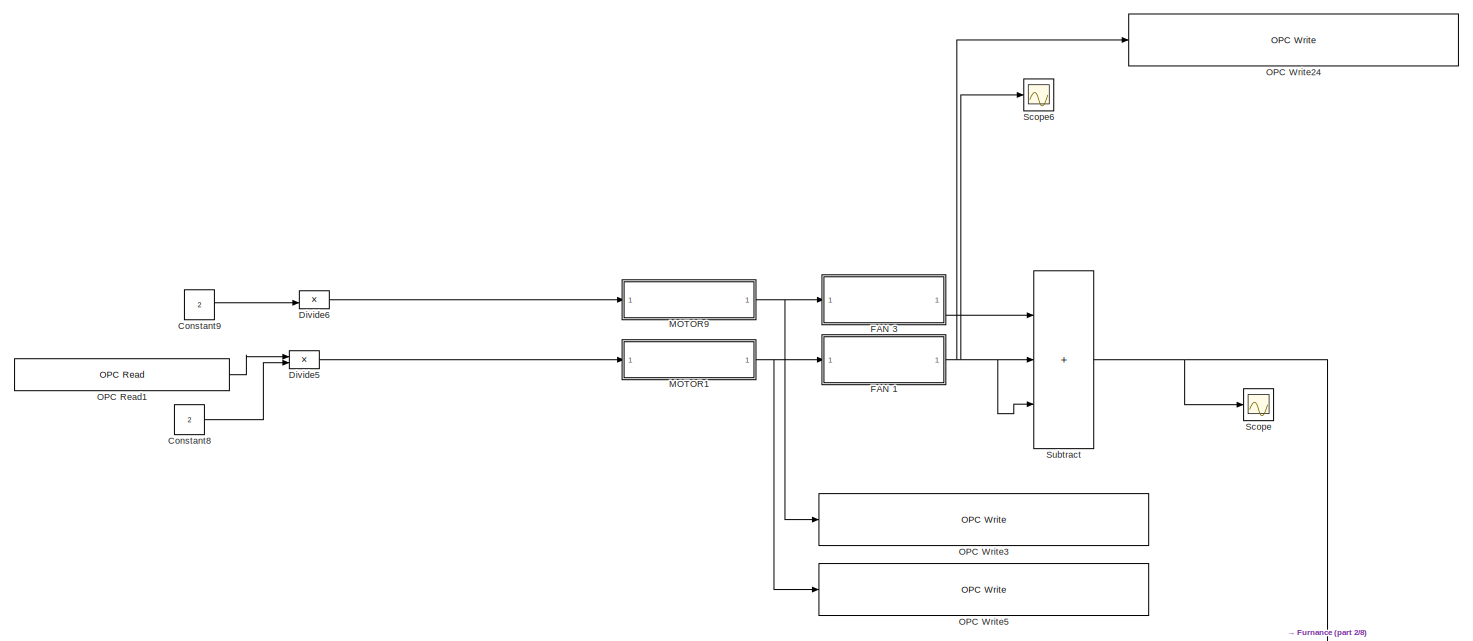
[diagram: root canvas - part 1/8, top left region]
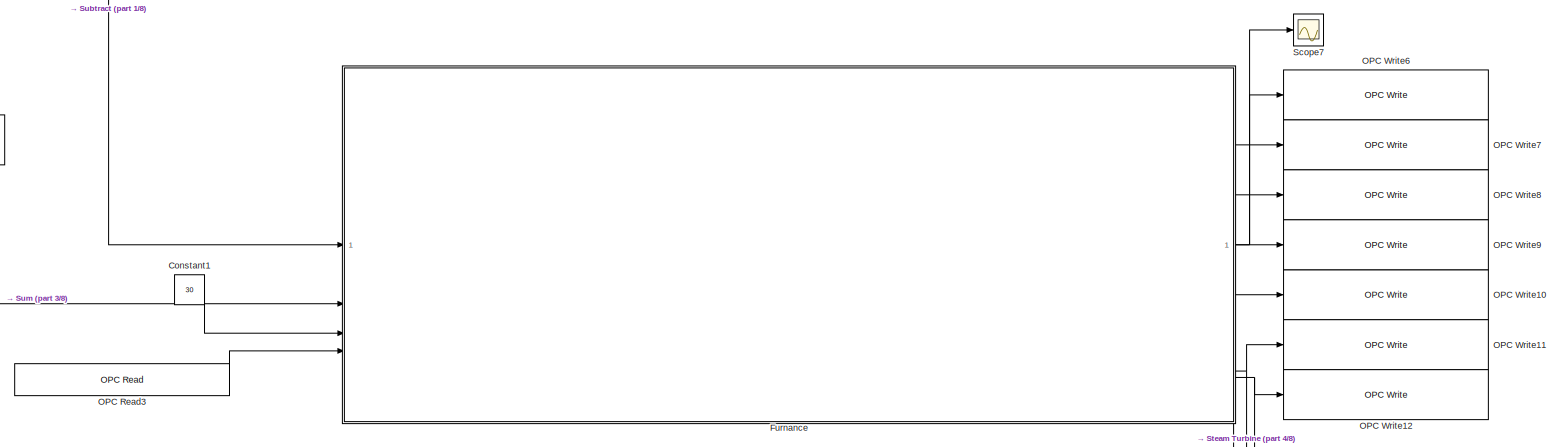
[diagram: root canvas - part 2/8, top right region]
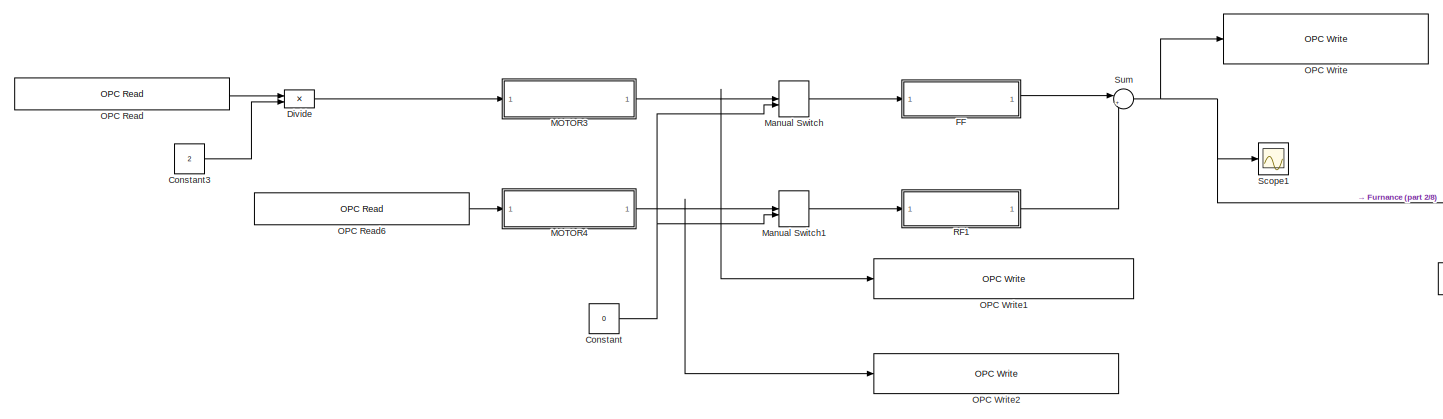
[diagram: root canvas - part 3/8, middle left region]
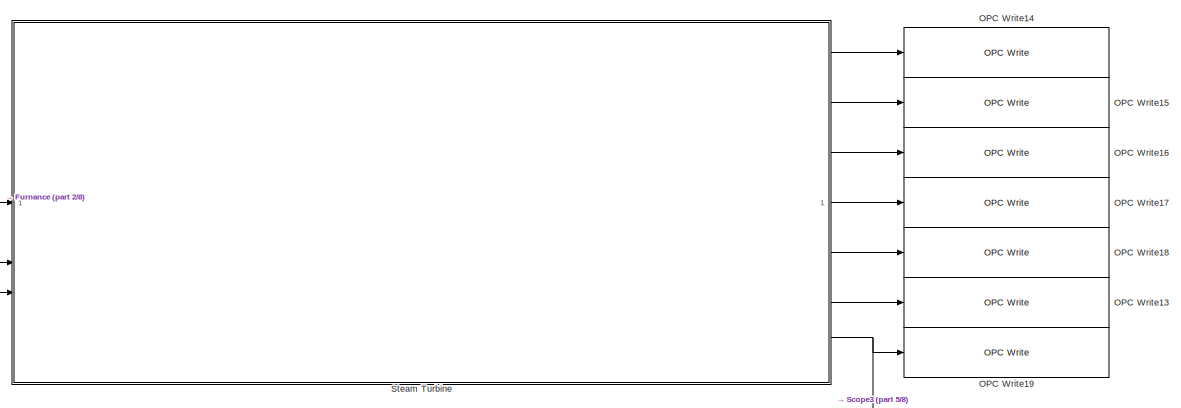
[diagram: root canvas - part 4/8, middle right region]
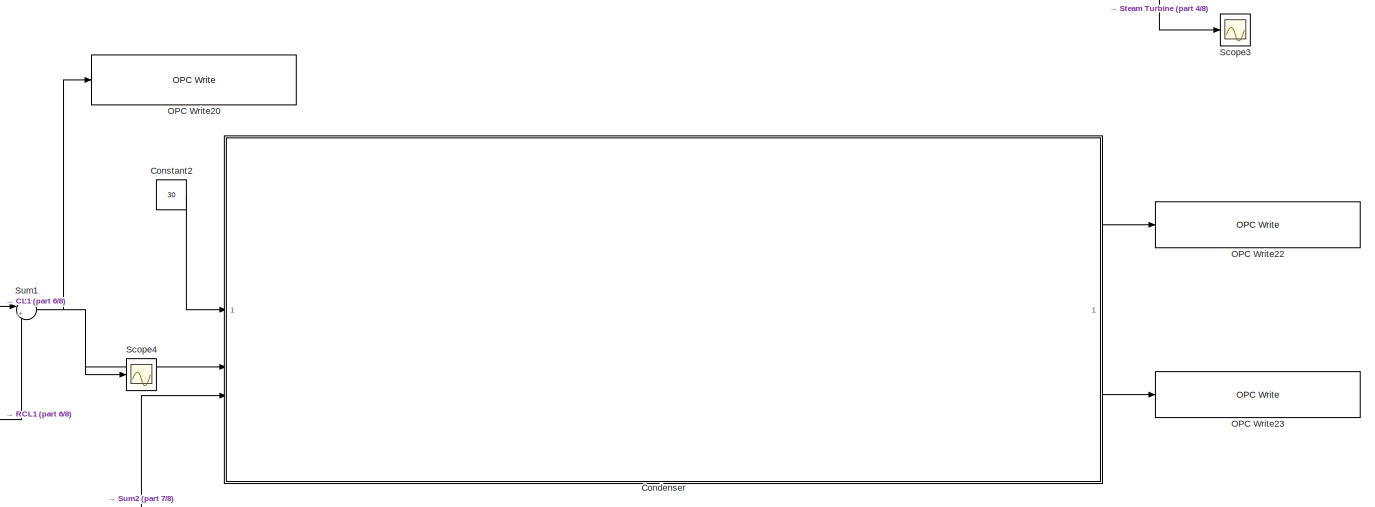
[diagram: root canvas - part 5/8, bottom right region]
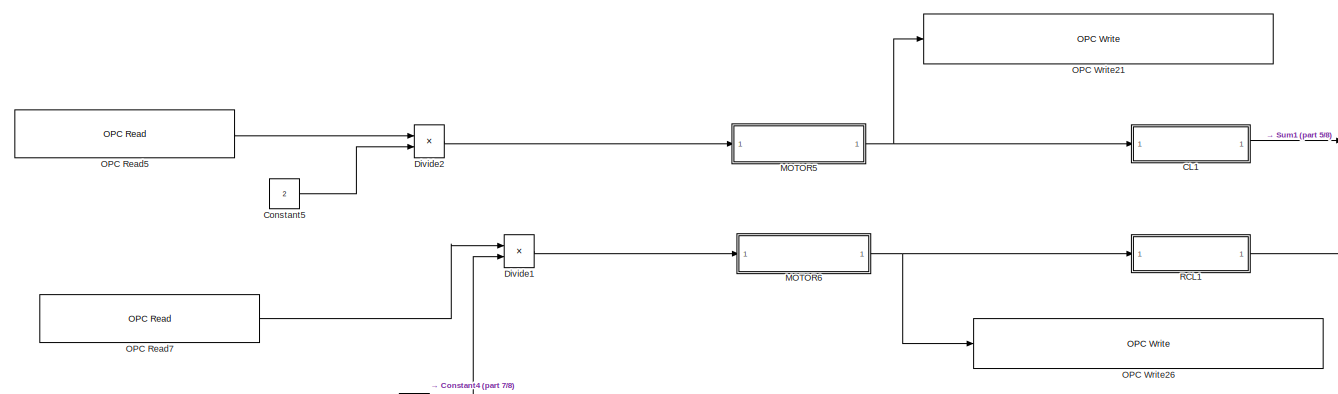
[diagram: root canvas - part 6/8, bottom left region]
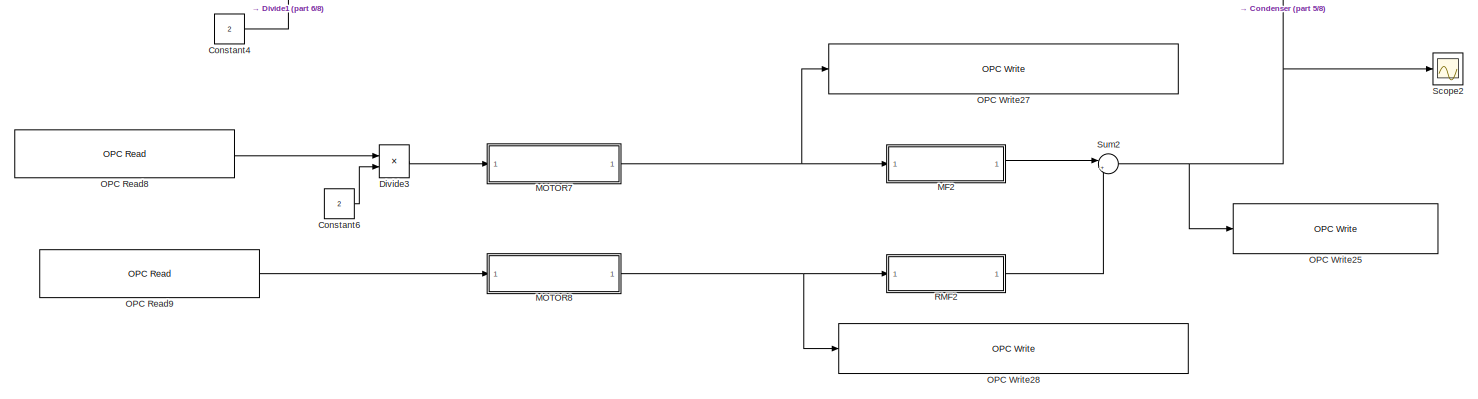
[diagram: root canvas - part 7/8, bottom center region]
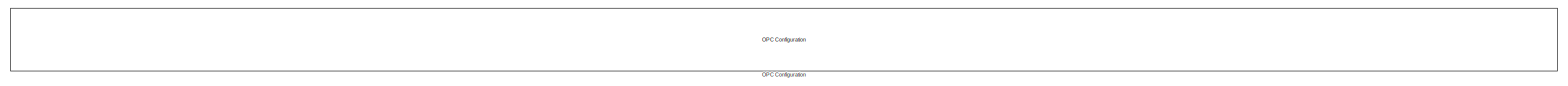
[diagram: root canvas - part 8/8, full width, bottom band]
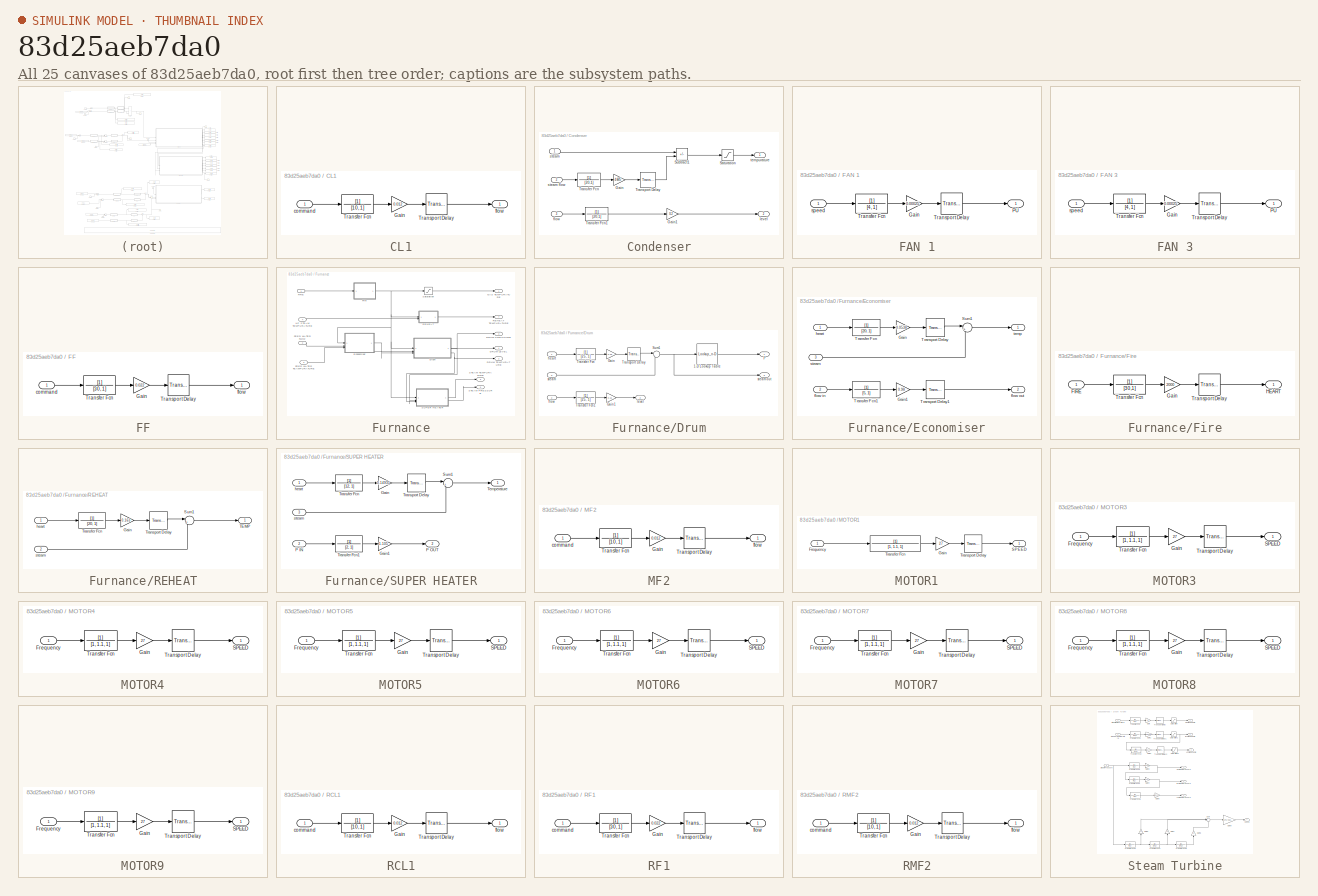
[diagram: thumbnail index - all 25 canvases of the model, root first then tree order]
MODEL slx_83d25aeb7da0
KIND model
CONFIG AbsTol = auto
CONFIG EnableMultiTasking = off
CONFIG FixedStep = auto
CONFIG MaxStep = auto
CONFIG MinStep = auto
CONFIG RelTol = 1e-3
CONFIG SampleTimeConstraint = Unconstrained
CONFIG SolverName = VariableStepAuto
CONFIG StartTime = 0.0
CONFIG StopTime = inf
BLOCK [SubSystem] CL1
BLOCK [Gain] CL1/Gain
  Gain = 0.012
BLOCK [TransferFcn] CL1/Transfer Fcn
  Denominator = [10, 1]
BLOCK [TransportDelay] CL1/Transport Delay
  DelayTime = 2
BLOCK [Inport] CL1/command
BLOCK [Outport] CL1/flow
BLOCK [SubSystem] Condenser
BLOCK [Gain] Condenser/Gain
  Gain = 4.6875
BLOCK [Gain] Condenser/Gain1
  Gain = 0.2
BLOCK [Saturate] Condenser/Saturation
  LowerLimit = 25
  UpperLimit = 35
BLOCK [Sum] Condenser/Subtract1
  IconShape = rectangular
  Inputs = +-
BLOCK [TransferFcn] Condenser/Transfer Fcn
  Denominator = [20,1]
BLOCK [TransferFcn] Condenser/Transfer Fcn1
  Denominator = [20,1]
BLOCK [TransportDelay] Condenser/Transport Delay
  DelayTime = 4
BLOCK [Inport] Condenser/flow
  Port = 3
BLOCK [Outport] Condenser/level
  Port = 2
BLOCK [Inport] Condenser/steam
BLOCK [Inport] Condenser/steam flow
  Port = 2
BLOCK [Outport] Condenser/tempurature
BLOCK [Constant] Constant
  Value = 0
BLOCK [Constant] Constant1
  Value = 30
BLOCK [Constant] Constant2
  Value = 30
BLOCK [Constant] Constant3
  Value = 2
BLOCK [Constant] Constant4
  Value = 2
BLOCK [Constant] Constant5
  Value = 2
BLOCK [Constant] Constant6
  Value = 2
BLOCK [Constant] Constant8
  Value = 2
BLOCK [Constant] Constant9
  Value = 2
BLOCK [Product] Divide
  Inputs = */
  RndMeth = Zero
  SaturateOnIntegerOverflow = on
BLOCK [Product] Divide1
  Inputs = */
  RndMeth = Zero
  SaturateOnIntegerOverflow = on
BLOCK [Product] Divide2
  Inputs = */
  RndMeth = Zero
  SaturateOnIntegerOverflow = on
BLOCK [Product] Divide3
  Inputs = */
  RndMeth = Zero
  SaturateOnIntegerOverflow = on
BLOCK [Product] Divide5
  Inputs = */
  RndMeth = Zero
  SaturateOnIntegerOverflow = on
BLOCK [Product] Divide6
  Inputs = */
  RndMeth = Zero
  SaturateOnIntegerOverflow = on
BLOCK [SubSystem] FAN 1
BLOCK [Gain] FAN 1/Gain
  Gain = 0.00025
BLOCK [Outport] FAN 1/PU
BLOCK [TransferFcn] FAN 1/Transfer Fcn
  Denominator = [4, 1]
BLOCK [TransportDelay] FAN 1/Transport Delay
  DelayTime = 2
BLOCK [Inport] FAN 1/speed
BLOCK [SubSystem] FAN 3
BLOCK [Gain] FAN 3/Gain
  Gain = 0.00025
BLOCK [Outport] FAN 3/PU
BLOCK [TransferFcn] FAN 3/Transfer Fcn
  Denominator = [4, 1]
BLOCK [TransportDelay] FAN 3/Transport Delay
  DelayTime = 2
BLOCK [Inport] FAN 3/speed
BLOCK [SubSystem] FF
BLOCK [Gain] FF/Gain
  Gain = 0.022
BLOCK [TransferFcn] FF/Transfer Fcn
  Denominator = [30, 1]
BLOCK [TransportDelay] FF/Transport Delay
  DelayTime = 3
BLOCK [Inport] FF/command
BLOCK [Outport] FF/flow
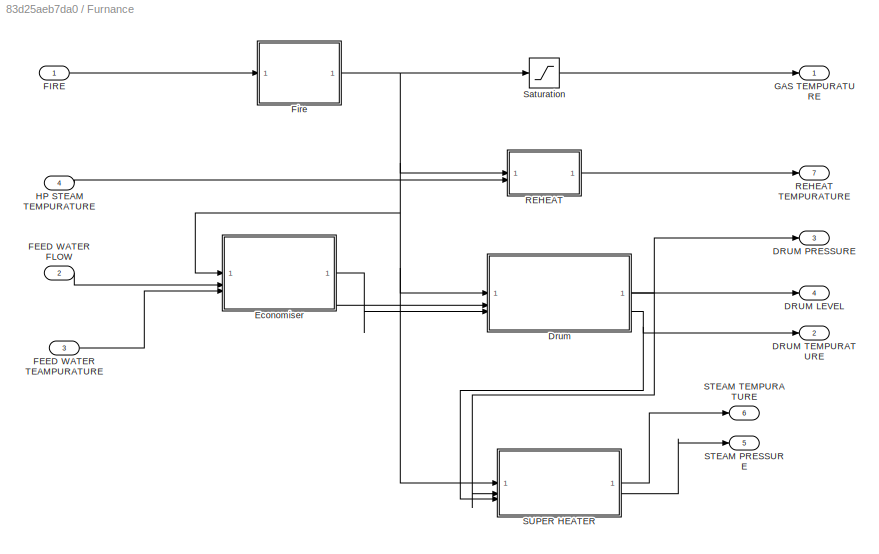
BLOCK [SubSystem] Furnance
BLOCK [Outport] Furnance/DRUM LEVEL
  Port = 4
BLOCK [Outport] Furnance/DRUM PRESSURE
  Port = 3
BLOCK [Outport] Furnance/DRUM TEMPURATURE
  Port = 2
BLOCK [SubSystem] Furnance/Drum
BLOCK [Lookup_n-D] Furnance/Drum/1-D Lookup Table
  BreakpointsForDimension1 = [28.98;32.9;36.18;39.02;41.53;43.79;45.83;47.71;49.45;51.06;52.58;54;55.34;56.62;57.83;58.98;60.09;61.15;62.16;63.14;64.08;64.99;65.87;66.72;67.55;68.35;69.12;75.89;81.35;85.95;89.96;93.51;96.71;99.63;104.81;109.32;113.32;116.63;120.23;127.43;133.54;138.88;143.62;147.92;151.85;164.96;170.42;175.36;179.88;187.96;191.6;195.04;198.28;201.37;204.3;207.1;209.79;212.37;214.85;217.24;219.54;221.78;223.94...<+280ch>
  InputPortMap = u0
  InternalRulePriority = Speed
  NumberOfTableDimensions = 1
  RndMeth = Simplest
  Table = [0.004;0.005;0.006;0.007;0.008;0.009;0.01;0.011;0.012;0.013;0.014;0.015;0.016;0.017;0.018;0.019;0.02;0.021;0.022;0.023;0.024;0.025;0.026;0.027;0.028;0.029;0.03;0.04;0.05;0.06;0.07;0.08;0.09;0.1;0.12;0.14;0.16;0.18;0.2;0.25;0.3;0.35;0.4;0.5;0.6;0.7;0.8;0.9;1;1.2;1.3;1.4;1.5;1.6;1.7;1.8;1.9;2;2.1;2.2;2.3;2.4;2.5;2.6;2.7;2.8;2.9;3;3.1;3.2;3.3;3.4;3.5;3.6;3.7;3.8;3.9;4;4.5;5;5.5;6;6.5;7;7.5;8;8.5;9;9....<+60ch>
BLOCK [Gain] Furnance/Drum/Gain
  Gain = 0.19
BLOCK [Gain] Furnance/Drum/Gain1
  Gain = 0.11
BLOCK [Outport] Furnance/Drum/P
BLOCK [Sum] Furnance/Drum/Sum1
  Inputs = |++
BLOCK [TransferFcn] Furnance/Drum/Transfer Fcn
  Denominator = [25, 1]
BLOCK [TransferFcn] Furnance/Drum/Transfer Fcn1
  Denominator = [25, 1]
BLOCK [TransportDelay] Furnance/Drum/Transport Delay
  DelayTime = 3
BLOCK [Inport] Furnance/Drum/flow 
  Port = 2
BLOCK [Inport] Furnance/Drum/heart
BLOCK [Outport] Furnance/Drum/level
  Port = 2
BLOCK [Inport] Furnance/Drum/steam
  Port = 3
BLOCK [Outport] Furnance/Drum/steam out
  Port = 3
BLOCK [SubSystem] Furnance/Economiser
BLOCK [Gain] Furnance/Economiser/Gain
  Gain = 0.0538
BLOCK [Gain] Furnance/Economiser/Gain1
  Gain = 0.98
BLOCK [Sum] Furnance/Economiser/Sum1
  Inputs = |++
BLOCK [TransferFcn] Furnance/Economiser/Transfer Fcn
  Denominator = [20, 1]
BLOCK [TransferFcn] Furnance/Economiser/Transfer Fcn1
  Denominator = [5, 1]
BLOCK [TransportDelay] Furnance/Economiser/Transport Delay
  DelayTime = 3
BLOCK [TransportDelay] Furnance/Economiser/Transport Delay1
  DelayTime = 2
BLOCK [Inport] Furnance/Economiser/flow in
  Port = 2
BLOCK [Outport] Furnance/Economiser/flow out
  Port = 2
BLOCK [Inport] Furnance/Economiser/heart
BLOCK [Inport] Furnance/Economiser/steam
  Port = 3
BLOCK [Outport] Furnance/Economiser/temp
BLOCK [Inport] Furnance/FEED WATER FLOW
  Port = 2
BLOCK [Inport] Furnance/FEED WATER TEAMPURATURE
  Port = 3
BLOCK [Inport] Furnance/FIRE
BLOCK [SubSystem] Furnance/Fire
BLOCK [Inport] Furnance/Fire/FIRE
BLOCK [Gain] Furnance/Fire/Gain
  Gain = 2000
BLOCK [Outport] Furnance/Fire/HEART
BLOCK [TransferFcn] Furnance/Fire/Transfer Fcn
  Denominator = [30,1]
BLOCK [TransportDelay] Furnance/Fire/Transport Delay
  DelayTime = 3
BLOCK [Outport] Furnance/GAS TEMPURATURE
BLOCK [Inport] Furnance/HP STEAM TEMPURATURE
  Port = 4
BLOCK [SubSystem] Furnance/REHEAT
BLOCK [Outport] Furnance/REHEAT TEMPURATURE
  Port = 7
BLOCK [Gain] Furnance/REHEAT/Gain
  Gain = 0.163
BLOCK [Sum] Furnance/REHEAT/Sum1
  Inputs = |++
BLOCK [Outport] Furnance/REHEAT/TEMP
BLOCK [TransferFcn] Furnance/REHEAT/Transfer Fcn
  Denominator = [20, 1]
BLOCK [TransportDelay] Furnance/REHEAT/Transport Delay
  DelayTime = 10
BLOCK [Inport] Furnance/REHEAT/heart
BLOCK [Inport] Furnance/REHEAT/steam
  Port = 2
BLOCK [Outport] Furnance/STEAM PRESSURE
  Port = 5
BLOCK [Outport] Furnance/STEAM TEMPURATURE
  Port = 6
BLOCK [SubSystem] Furnance/SUPER HEATER
BLOCK [Gain] Furnance/SUPER HEATER/Gain
  Gain = 0.14935
BLOCK [Gain] Furnance/SUPER HEATER/Gain1
  Gain = 1.105
BLOCK [Inport] Furnance/SUPER HEATER/P IN 
  Port = 2
BLOCK [Outport] Furnance/SUPER HEATER/P OUT
  Port = 2
BLOCK [Sum] Furnance/SUPER HEATER/Sum1
  Inputs = |++
BLOCK [Outport] Furnance/SUPER HEATER/Temperature
BLOCK [TransferFcn] Furnance/SUPER HEATER/Transfer Fcn
  Denominator = [12, 1]
BLOCK [TransferFcn] Furnance/SUPER HEATER/Transfer Fcn1
  Denominator = [2, 1]
BLOCK [TransportDelay] Furnance/SUPER HEATER/Transport Delay
BLOCK [Inport] Furnance/SUPER HEATER/heart
BLOCK [Inport] Furnance/SUPER HEATER/steam
  Port = 3
BLOCK [Saturate] Furnance/Saturation
  LowerLimit = 0
  UpperLimit = 2000
BLOCK [SubSystem] MF2
BLOCK [Gain] MF2/Gain
  Gain = 0.012
BLOCK [TransferFcn] MF2/Transfer Fcn
  Denominator = [10, 1]
BLOCK [TransportDelay] MF2/Transport Delay
  DelayTime = 2
BLOCK [Inport] MF2/command
BLOCK [Outport] MF2/flow
BLOCK [SubSystem] MOTOR1
BLOCK [Inport] MOTOR1/Frequency
BLOCK [Gain] MOTOR1/Gain
  Gain = 27
BLOCK [Outport] MOTOR1/SPEED
BLOCK [TransferFcn] MOTOR1/Transfer Fcn
  Denominator = [1, 1.1, 1]
BLOCK [TransportDelay] MOTOR1/Transport Delay
  DelayTime = 2
BLOCK [SubSystem] MOTOR3
BLOCK [Inport] MOTOR3/Frequency
BLOCK [Gain] MOTOR3/Gain
  Gain = 27
BLOCK [Outport] MOTOR3/SPEED
BLOCK [TransferFcn] MOTOR3/Transfer Fcn
  Denominator = [1, 1.1, 1]
BLOCK [TransportDelay] MOTOR3/Transport Delay
  DelayTime = 2
BLOCK [SubSystem] MOTOR4
BLOCK [Inport] MOTOR4/Frequency
BLOCK [Gain] MOTOR4/Gain
  Gain = 27
BLOCK [Outport] MOTOR4/SPEED
BLOCK [TransferFcn] MOTOR4/Transfer Fcn
  Denominator = [1, 1.1, 1]
BLOCK [TransportDelay] MOTOR4/Transport Delay
  DelayTime = 2
BLOCK [SubSystem] MOTOR5
BLOCK [Inport] MOTOR5/Frequency
BLOCK [Gain] MOTOR5/Gain
  Gain = 27
BLOCK [Outport] MOTOR5/SPEED
BLOCK [TransferFcn] MOTOR5/Transfer Fcn
  Denominator = [1, 1.1, 1]
BLOCK [TransportDelay] MOTOR5/Transport Delay
  DelayTime = 2
BLOCK [SubSystem] MOTOR6
BLOCK [Inport] MOTOR6/Frequency
BLOCK [Gain] MOTOR6/Gain
  Gain = 27
BLOCK [Outport] MOTOR6/SPEED
BLOCK [TransferFcn] MOTOR6/Transfer Fcn
  Denominator = [1, 1.1, 1]
BLOCK [TransportDelay] MOTOR6/Transport Delay
  DelayTime = 2
BLOCK [SubSystem] MOTOR7
BLOCK [Inport] MOTOR7/Frequency
BLOCK [Gain] MOTOR7/Gain
  Gain = 27
BLOCK [Outport] MOTOR7/SPEED
BLOCK [TransferFcn] MOTOR7/Transfer Fcn
  Denominator = [1, 1.1, 1]
BLOCK [TransportDelay] MOTOR7/Transport Delay
  DelayTime = 2
BLOCK [SubSystem] MOTOR8
BLOCK [Inport] MOTOR8/Frequency
BLOCK [Gain] MOTOR8/Gain
  Gain = 27
BLOCK [Outport] MOTOR8/SPEED
BLOCK [TransferFcn] MOTOR8/Transfer Fcn
  Denominator = [1, 1.1, 1]
BLOCK [TransportDelay] MOTOR8/Transport Delay
  DelayTime = 2
BLOCK [SubSystem] MOTOR9
BLOCK [Inport] MOTOR9/Frequency
BLOCK [Gain] MOTOR9/Gain
  Gain = 27
BLOCK [Outport] MOTOR9/SPEED
BLOCK [TransferFcn] MOTOR9/Transfer Fcn
  Denominator = [1, 1.1, 1]
BLOCK [TransportDelay] MOTOR9/Transport Delay
  DelayTime = 2
BLOCK [ManualSwitch] Manual Switch
BLOCK [ManualSwitch] Manual Switch1
BLOCK [Reference] OPC Configuration  REF=opclib/OPC Configuration
  NameLocation = top
  SourceBlock = opclib/OPC Configuration
  SourceType = OPC Configuration
BLOCK [Reference] OPC Read  REF=opclib/OPC Read
  SourceBlock = opclib/OPC Read
  SourceType = OPC Read
BLOCK [Reference] OPC Read1  REF=opclib/OPC Read
  SourceBlock = opclib/OPC Read
  SourceType = OPC Read
BLOCK [Reference] OPC Read3  REF=opclib/OPC Read
  SourceBlock = opclib/OPC Read
  SourceType = OPC Read
BLOCK [Reference] OPC Read5  REF=opclib/OPC Read
  SourceBlock = opclib/OPC Read
  SourceType = OPC Read
BLOCK [Reference] OPC Read6  REF=opclib/OPC Read
  SourceBlock = opclib/OPC Read
  SourceType = OPC Read
BLOCK [Reference] OPC Read7  REF=opclib/OPC Read
  SourceBlock = opclib/OPC Read
  SourceType = OPC Read
BLOCK [Reference] OPC Read8  REF=opclib/OPC Read
  SourceBlock = opclib/OPC Read
  SourceType = OPC Read
BLOCK [Reference] OPC Read9  REF=opclib/OPC Read
  SourceBlock = opclib/OPC Read
  SourceType = OPC Read
BLOCK [Reference] OPC Write  REF=opclib/OPC Write
  SourceBlock = opclib/OPC Write
  SourceType = OPC Write
BLOCK [Reference] OPC Write1  REF=opclib/OPC Write
  SourceBlock = opclib/OPC Write
  SourceType = OPC Write
BLOCK [Reference] OPC Write10  REF=opclib/OPC Write
  SourceBlock = opclib/OPC Write
  SourceType = OPC Write
BLOCK [Reference] OPC Write11  REF=opclib/OPC Write
  SourceBlock = opclib/OPC Write
  SourceType = OPC Write
BLOCK [Reference] OPC Write12  REF=opclib/OPC Write
  SourceBlock = opclib/OPC Write
  SourceType = OPC Write
BLOCK [Reference] OPC Write13  REF=opclib/OPC Write
  SourceBlock = opclib/OPC Write
  SourceType = OPC Write
BLOCK [Reference] OPC Write14  REF=opclib/OPC Write
  SourceBlock = opclib/OPC Write
  SourceType = OPC Write
BLOCK [Reference] OPC Write15  REF=opclib/OPC Write
  SourceBlock = opclib/OPC Write
  SourceType = OPC Write
BLOCK [Reference] OPC Write16  REF=opclib/OPC Write
  SourceBlock = opclib/OPC Write
  SourceType = OPC Write
BLOCK [Reference] OPC Write17  REF=opclib/OPC Write
  SourceBlock = opclib/OPC Write
  SourceType = OPC Write
BLOCK [Reference] OPC Write18  REF=opclib/OPC Write
  SourceBlock = opclib/OPC Write
  SourceType = OPC Write
BLOCK [Reference] OPC Write19  REF=opclib/OPC Write
  SourceBlock = opclib/OPC Write
  SourceType = OPC Write
BLOCK [Reference] OPC Write2  REF=opclib/OPC Write
  SourceBlock = opclib/OPC Write
  SourceType = OPC Write
BLOCK [Reference] OPC Write20  REF=opclib/OPC Write
  SourceBlock = opclib/OPC Write
  SourceType = OPC Write
BLOCK [Reference] OPC Write21  REF=opclib/OPC Write
  SourceBlock = opclib/OPC Write
  SourceType = OPC Write
BLOCK [Reference] OPC Write22  REF=opclib/OPC Write
  SourceBlock = opclib/OPC Write
  SourceType = OPC Write
BLOCK [Reference] OPC Write23  REF=opclib/OPC Write
  SourceBlock = opclib/OPC Write
  SourceType = OPC Write
BLOCK [Reference] OPC Write24  REF=opclib/OPC Write
  SourceBlock = opclib/OPC Write
  SourceType = OPC Write
BLOCK [Reference] OPC Write25  REF=opclib/OPC Write
  SourceBlock = opclib/OPC Write
  SourceType = OPC Write
BLOCK [Reference] OPC Write26  REF=opclib/OPC Write
  SourceBlock = opclib/OPC Write
  SourceType = OPC Write
BLOCK [Reference] OPC Write27  REF=opclib/OPC Write
  SourceBlock = opclib/OPC Write
  SourceType = OPC Write
BLOCK [Reference] OPC Write28  REF=opclib/OPC Write
  SourceBlock = opclib/OPC Write
  SourceType = OPC Write
BLOCK [Reference] OPC Write3  REF=opclib/OPC Write
  SourceBlock = opclib/OPC Write
  SourceType = OPC Write
BLOCK [Reference] OPC Write5  REF=opclib/OPC Write
  SourceBlock = opclib/OPC Write
  SourceType = OPC Write
BLOCK [Reference] OPC Write6  REF=opclib/OPC Write
  SourceBlock = opclib/OPC Write
  SourceType = OPC Write
BLOCK [Reference] OPC Write7  REF=opclib/OPC Write
  SourceBlock = opclib/OPC Write
  SourceType = OPC Write
BLOCK [Reference] OPC Write8  REF=opclib/OPC Write
  SourceBlock = opclib/OPC Write
  SourceType = OPC Write
BLOCK [Reference] OPC Write9  REF=opclib/OPC Write
  SourceBlock = opclib/OPC Write
  SourceType = OPC Write
BLOCK [SubSystem] RCL1
BLOCK [Gain] RCL1/Gain
  Gain = 0.012
BLOCK [TransferFcn] RCL1/Transfer Fcn
  Denominator = [10, 1]
BLOCK [TransportDelay] RCL1/Transport Delay
  DelayTime = 2
BLOCK [Inport] RCL1/command
BLOCK [Outport] RCL1/flow
BLOCK [SubSystem] RF1
BLOCK [Gain] RF1/Gain
  Gain = 0.022
BLOCK [TransferFcn] RF1/Transfer Fcn
  Denominator = [30, 1]
BLOCK [TransportDelay] RF1/Transport Delay
  DelayTime = 3
BLOCK [Inport] RF1/command
BLOCK [Outport] RF1/flow
BLOCK [SubSystem] RMF2
BLOCK [Gain] RMF2/Gain
  Gain = 0.012
BLOCK [TransferFcn] RMF2/Transfer Fcn
  Denominator = [10, 1]
BLOCK [TransportDelay] RMF2/Transport Delay
  DelayTime = 2
BLOCK [Inport] RMF2/command
BLOCK [Outport] RMF2/flow
BLOCK [Scope] Scope
  Floating = off
  NumInputPorts = 1
  ScopeSpecificationString = Simulink.scopes.TimeScopeBlockCfg('CurrentConfiguration', extmgr.ConfigurationSet(extmgr.Configuration('Core','General UI',true),extmgr.Configuration('Core','Source UI',true),extmgr.Configuration('Sources','WiredSimulink',true),extmgr.Configuration('Visuals','Time Domain',true,'SerializedDisplays',{struct('MinYLimReal','-0.08383','MaxYLimReal','0.75447','YLabelReal','','MinYLimMag','0.00000','MaxY...<+1353ch>
BLOCK [Scope] Scope1
  Floating = off
  NumInputPorts = 1
  ScopeSpecificationString = Simulink.scopes.TimeScopeBlockCfg('CurrentConfiguration', extmgr.ConfigurationSet(extmgr.Configuration('Core','General UI',true),extmgr.Configuration('Core','Source UI',true),extmgr.Configuration('Sources','WiredSimulink',true,'DataLoggingVariableName','ScopeData1'),extmgr.Configuration('Visuals','Time Domain',true,'SerializedDisplays',{struct('MinYLimReal','-3.35654','MaxYLimReal','30.20883','YLa...<+1391ch>
BLOCK [Scope] Scope2
  Floating = off
  NumInputPorts = 1
  ScopeSpecificationString = Simulink.scopes.TimeScopeBlockCfg('CurrentConfiguration', extmgr.ConfigurationSet(extmgr.Configuration('Core','General UI',true),extmgr.Configuration('Core','Source UI',true),extmgr.Configuration('Sources','WiredSimulink',true,'DataLoggingVariableName','ScopeData2'),extmgr.Configuration('Visuals','Time Domain',true,'SerializedDisplays',{struct('MinYLimReal','-1.00000','MaxYLimReal','1.00000','YLab...<+1363ch>
BLOCK [Scope] Scope3
  Floating = off
  NumInputPorts = 1
  ScopeSpecificationString = Simulink.scopes.TimeScopeBlockCfg('CurrentConfiguration', extmgr.ConfigurationSet(extmgr.Configuration('Core','General UI',true),extmgr.Configuration('Core','Source UI',true),extmgr.Configuration('Sources','WiredSimulink',true,'DataLoggingVariableName','ScopeData1'),extmgr.Configuration('Visuals','Time Domain',true,'SerializedDisplays',{struct('MinYLimReal','-240.52525','MaxYLimReal','2164.72723',...<+1417ch>
BLOCK [Scope] Scope4
  Floating = off
  NumInputPorts = 1
  ScopeSpecificationString = Simulink.scopes.TimeScopeBlockCfg('CurrentConfiguration', extmgr.ConfigurationSet(extmgr.Configuration('Core','General UI',true),extmgr.Configuration('Core','Source UI',true),extmgr.Configuration('Sources','WiredSimulink',true,'DataLoggingVariableName','ScopeData1'),extmgr.Configuration('Visuals','Time Domain',true,'SerializedDisplays',{struct('MinYLimReal','-1.87499','MaxYLimReal','16.87492','YLa...<+1421ch>
BLOCK [Scope] Scope6
  Floating = off
  NumInputPorts = 1
  ScopeSpecificationString = Simulink.scopes.TimeScopeBlockCfg('CurrentConfiguration', extmgr.ConfigurationSet(extmgr.Configuration('Core','General UI',true),extmgr.Configuration('Core','Source UI',true),extmgr.Configuration('Sources','WiredSimulink',true,'DataLoggingVariableName','ScopeData2'),extmgr.Configuration('Visuals','Time Domain',true,'SerializedDisplays',{struct('MinYLimReal','-0.04192','MaxYLimReal','0.37724','YLab...<+1389ch>
BLOCK [Scope] Scope7
  Floating = off
  NumInputPorts = 1
  ScopeSpecificationString = Simulink.scopes.TimeScopeBlockCfg('CurrentConfiguration', extmgr.ConfigurationSet(extmgr.Configuration('Core','General UI',true),extmgr.Configuration('Core','Source UI',true),extmgr.Configuration('Sources','WiredSimulink',true,'DataLoggingVariableName','ScopeData3'),extmgr.Configuration('Visuals','Time Domain',true,'SerializedDisplays',{struct('MinYLimReal','-144.57591','MaxYLimReal','1301.18316',...<+1412ch>
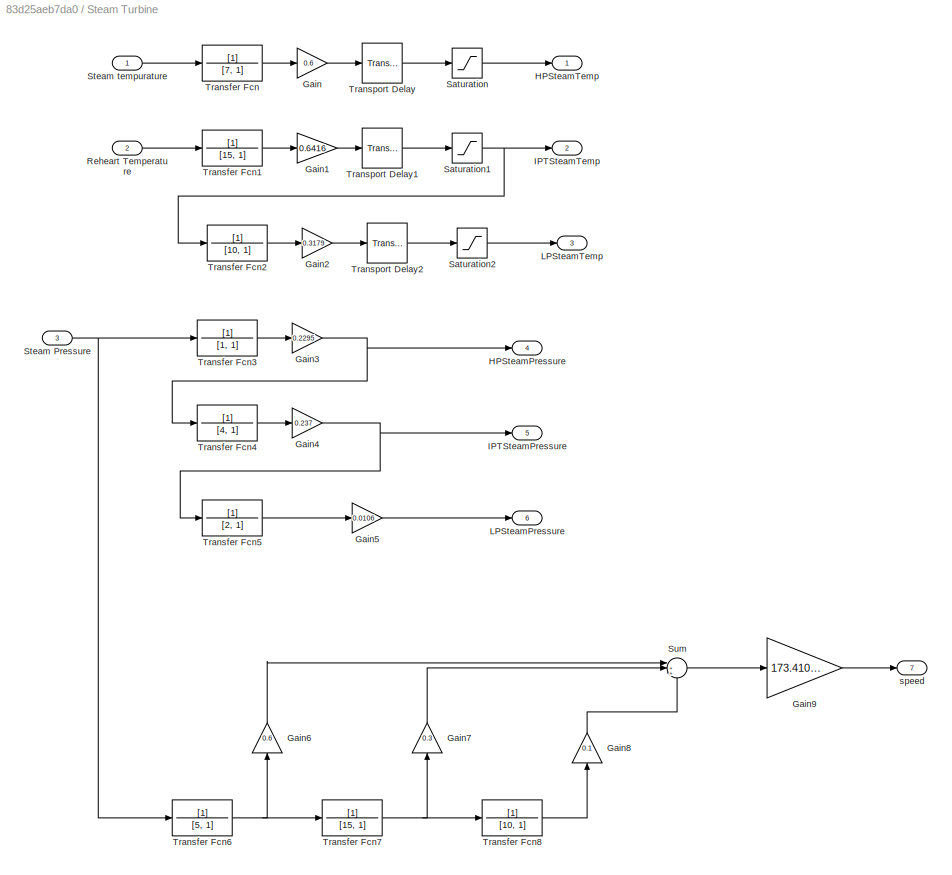
BLOCK [SubSystem] Steam Turbine
BLOCK [Gain] Steam Turbine/Gain
  Gain = 0.6
BLOCK [Gain] Steam Turbine/Gain1
  Gain = 0.6416
BLOCK [Gain] Steam Turbine/Gain2
  Gain = 0.3179
BLOCK [Gain] Steam Turbine/Gain3
  Gain = 0.2295
BLOCK [Gain] Steam Turbine/Gain4
  Gain = 0.237
BLOCK [Gain] Steam Turbine/Gain5
  Gain = 0.0106
BLOCK [Gain] Steam Turbine/Gain6
  Gain = 0.6
  NameLocation = right
BLOCK [Gain] Steam Turbine/Gain7
  Gain = 0.3
  NameLocation = right
BLOCK [Gain] Steam Turbine/Gain8
  Gain = 0.1
  NameLocation = right
BLOCK [Gain] Steam Turbine/Gain9
  Gain = 173.410404
BLOCK [Outport] Steam Turbine/HPSteamPressure
  Port = 4
BLOCK [Outport] Steam Turbine/HPSteamTemp
BLOCK [Outport] Steam Turbine/IPTSteamPressure
  Port = 5
BLOCK [Outport] Steam Turbine/IPTSteamTemp
  Port = 2
BLOCK [Outport] Steam Turbine/LPSteamPressure
  Port = 6
BLOCK [Outport] Steam Turbine/LPSteamTemp
  Port = 3
BLOCK [Inport] Steam Turbine/Reheart Temperature
  Port = 2
BLOCK [Saturate] Steam Turbine/Saturation
  LowerLimit = 30
  UpperLimit = 100000000
BLOCK [Saturate] Steam Turbine/Saturation1
  LowerLimit = 30
  UpperLimit = 100000000
BLOCK [Saturate] Steam Turbine/Saturation2
  LowerLimit = 30
  UpperLimit = 100000000
BLOCK [Inport] Steam Turbine/Steam Pressure
  Port = 3
BLOCK [Inport] Steam Turbine/Steam tempurature
BLOCK [Sum] Steam Turbine/Sum
  Inputs = |+++
BLOCK [TransferFcn] Steam Turbine/Transfer Fcn
  Denominator = [7, 1]
BLOCK [TransferFcn] Steam Turbine/Transfer Fcn1
  Denominator = [15, 1]
BLOCK [TransferFcn] Steam Turbine/Transfer Fcn2
  Denominator = [10, 1]
BLOCK [TransferFcn] Steam Turbine/Transfer Fcn3
  Denominator = [1, 1]
BLOCK [TransferFcn] Steam Turbine/Transfer Fcn4
  Denominator = [4, 1]
BLOCK [TransferFcn] Steam Turbine/Transfer Fcn5
  Denominator = [2, 1]
BLOCK [TransferFcn] Steam Turbine/Transfer Fcn6
  Denominator = [5, 1]
BLOCK [TransferFcn] Steam Turbine/Transfer Fcn7
  Denominator = [15, 1]
BLOCK [TransferFcn] Steam Turbine/Transfer Fcn8
  Denominator = [10, 1]
BLOCK [TransportDelay] Steam Turbine/Transport Delay
  DelayTime = 2
BLOCK [TransportDelay] Steam Turbine/Transport Delay1
  DelayTime = 2
BLOCK [TransportDelay] Steam Turbine/Transport Delay2
  DelayTime = 2
BLOCK [Outport] Steam Turbine/speed
  Port = 7
BLOCK [Sum] Subtract
  IconShape = rectangular
  Inputs = +++
BLOCK [Sum] Sum
  Inputs = |++
BLOCK [Sum] Sum1
  Inputs = |++
BLOCK [Sum] Sum2
  Inputs = |++
LINE CL1/Gain:1 -> CL1/Transport Delay:1
LINE CL1/Transfer Fcn:1 -> CL1/Gain:1
LINE CL1/Transport Delay:1 -> CL1/flow:1
LINE CL1/command:1 -> CL1/Transfer Fcn:1
LINE CL1:1 -> Sum1:1
LINE Condenser/Gain1:1 -> Condenser/level:1
LINE Condenser/Gain:1 -> Condenser/Transport Delay:1
LINE Condenser/Saturation:1 -> Condenser/tempurature:1
LINE Condenser/Subtract1:1 -> Condenser/Saturation:1
LINE Condenser/Transfer Fcn1:1 -> Condenser/Gain1:1
LINE Condenser/Transfer Fcn:1 -> Condenser/Gain:1
LINE Condenser/Transport Delay:1 -> Condenser/Subtract1:2
LINE Condenser/flow:1 -> Condenser/Transfer Fcn1:1
LINE Condenser/steam flow:1 -> Condenser/Transfer Fcn:1
LINE Condenser/steam:1 -> Condenser/Subtract1:1
LINE Condenser:1 -> OPC Write22:1
LINE Condenser:2 -> OPC Write23:1
LINE Constant1:1 -> Furnance:3
LINE Constant2:1 -> Condenser:1
LINE Constant3:1 -> Divide:2
LINE Constant4:1 -> Divide1:2
LINE Constant5:1 -> Divide2:2
LINE Constant6:1 -> Divide3:2
LINE Constant8:1 -> Divide5:2
LINE Constant9:1 -> Divide6:2
NET Constant:1 -> Manual Switch1:2, Manual Switch:2
LINE Divide1:1 -> MOTOR6:1
LINE Divide2:1 -> MOTOR5:1
LINE Divide3:1 -> MOTOR7:1
LINE Divide5:1 -> MOTOR1:1
LINE Divide6:1 -> MOTOR9:1
LINE Divide:1 -> MOTOR3:1
LINE FAN 1/Gain:1 -> FAN 1/Transport Delay:1
LINE FAN 1/Transfer Fcn:1 -> FAN 1/Gain:1
LINE FAN 1/Transport Delay:1 -> FAN 1/PU:1
LINE FAN 1/speed:1 -> FAN 1/Transfer Fcn:1
NET FAN 1:1 -> OPC Write24:1, Scope6:1, Subtract:2, Subtract:3
LINE FAN 3/Gain:1 -> FAN 3/Transport Delay:1
LINE FAN 3/Transfer Fcn:1 -> FAN 3/Gain:1
LINE FAN 3/Transport Delay:1 -> FAN 3/PU:1
LINE FAN 3/speed:1 -> FAN 3/Transfer Fcn:1
LINE FAN 3:1 -> Subtract:1
LINE FF/Gain:1 -> FF/Transport Delay:1
LINE FF/Transfer Fcn:1 -> FF/Gain:1
LINE FF/Transport Delay:1 -> FF/flow:1
LINE FF/command:1 -> FF/Transfer Fcn:1
LINE FF:1 -> Sum:1
LINE Furnance/Drum/1-D Lookup Table:1 -> Furnance/Drum/P:1
LINE Furnance/Drum/Gain1:1 -> Furnance/Drum/level:1
LINE Furnance/Drum/Gain:1 -> Furnance/Drum/Transport Delay:1
NET Furnance/Drum/Sum1:1 -> Furnance/Drum/1-D Lookup Table:1, Furnance/Drum/steam out:1
LINE Furnance/Drum/Transfer Fcn1:1 -> Furnance/Drum/Gain1:1
LINE Furnance/Drum/Transfer Fcn:1 -> Furnance/Drum/Gain:1
LINE Furnance/Drum/Transport Delay:1 -> Furnance/Drum/Sum1:1
LINE Furnance/Drum/flow :1 -> Furnance/Drum/Transfer Fcn1:1
LINE Furnance/Drum/heart:1 -> Furnance/Drum/Transfer Fcn:1
LINE Furnance/Drum/steam:1 -> Furnance/Drum/Sum1:2
NET Furnance/Drum:1 -> Furnance/DRUM PRESSURE:1, Furnance/SUPER HEATER:2
LINE Furnance/Drum:2 -> Furnance/DRUM LEVEL:1
NET Furnance/Drum:3 -> Furnance/DRUM TEMPURATURE:1, Furnance/SUPER HEATER:3
LINE Furnance/Economiser/Gain1:1 -> Furnance/Economiser/Transport Delay1:1
LINE Furnance/Economiser/Gain:1 -> Furnance/Economiser/Transport Delay:1
LINE Furnance/Economiser/Sum1:1 -> Furnance/Economiser/temp:1
LINE Furnance/Economiser/Transfer Fcn1:1 -> Furnance/Economiser/Gain1:1
LINE Furnance/Economiser/Transfer Fcn:1 -> Furnance/Economiser/Gain:1
LINE Furnance/Economiser/Transport Delay1:1 -> Furnance/Economiser/flow out:1
LINE Furnance/Economiser/Transport Delay:1 -> Furnance/Economiser/Sum1:1
LINE Furnance/Economiser/flow in:1 -> Furnance/Economiser/Transfer Fcn1:1
LINE Furnance/Economiser/heart:1 -> Furnance/Economiser/Transfer Fcn:1
LINE Furnance/Economiser/steam:1 -> Furnance/Economiser/Sum1:2
LINE Furnance/Economiser:1 -> Furnance/Drum:3
LINE Furnance/Economiser:2 -> Furnance/Drum:2
LINE Furnance/FEED WATER FLOW:1 -> Furnance/Economiser:2
LINE Furnance/FEED WATER TEAMPURATURE:1 -> Furnance/Economiser:3
LINE Furnance/FIRE:1 -> Furnance/Fire:1
LINE Furnance/Fire/FIRE:1 -> Furnance/Fire/Transfer Fcn:1
LINE Furnance/Fire/Gain:1 -> Furnance/Fire/Transport Delay:1
LINE Furnance/Fire/Transfer Fcn:1 -> Furnance/Fire/Gain:1
LINE Furnance/Fire/Transport Delay:1 -> Furnance/Fire/HEART:1
NET Furnance/Fire:1 -> Furnance/Drum:1, Furnance/Economiser:1, Furnance/REHEAT:1, Furnance/SUPER HEATER:1, Furnance/Saturation:1
LINE Furnance/HP STEAM TEMPURATURE:1 -> Furnance/REHEAT:2
LINE Furnance/REHEAT/Gain:1 -> Furnance/REHEAT/Transport Delay:1
LINE Furnance/REHEAT/Sum1:1 -> Furnance/REHEAT/TEMP:1
LINE Furnance/REHEAT/Transfer Fcn:1 -> Furnance/REHEAT/Gain:1
LINE Furnance/REHEAT/Transport Delay:1 -> Furnance/REHEAT/Sum1:1
LINE Furnance/REHEAT/heart:1 -> Furnance/REHEAT/Transfer Fcn:1
LINE Furnance/REHEAT/steam:1 -> Furnance/REHEAT/Sum1:2
LINE Furnance/REHEAT:1 -> Furnance/REHEAT TEMPURATURE:1
LINE Furnance/SUPER HEATER/Gain1:1 -> Furnance/SUPER HEATER/P OUT:1
LINE Furnance/SUPER HEATER/Gain:1 -> Furnance/SUPER HEATER/Transport Delay:1
LINE Furnance/SUPER HEATER/P IN :1 -> Furnance/SUPER HEATER/Transfer Fcn1:1
LINE Furnance/SUPER HEATER/Sum1:1 -> Furnance/SUPER HEATER/Temperature:1
LINE Furnance/SUPER HEATER/Transfer Fcn1:1 -> Furnance/SUPER HEATER/Gain1:1
LINE Furnance/SUPER HEATER/Transfer Fcn:1 -> Furnance/SUPER HEATER/Gain:1
LINE Furnance/SUPER HEATER/Transport Delay:1 -> Furnance/SUPER HEATER/Sum1:1
LINE Furnance/SUPER HEATER/heart:1 -> Furnance/SUPER HEATER/Transfer Fcn:1
LINE Furnance/SUPER HEATER/steam:1 -> Furnance/SUPER HEATER/Sum1:2
LINE Furnance/SUPER HEATER:1 -> Furnance/STEAM TEMPURATURE:1
LINE Furnance/SUPER HEATER:2 -> Furnance/STEAM PRESSURE:1
LINE Furnance/Saturation:1 -> Furnance/GAS TEMPURATURE:1
NET Furnance:1 -> OPC Write6:1, Scope7:1
LINE Furnance:2 -> OPC Write7:1
LINE Furnance:3 -> OPC Write8:1
LINE Furnance:4 -> OPC Write9:1
NET Furnance:5 -> OPC Write10:1, Steam Turbine:3
NET Furnance:6 -> OPC Write11:1, Steam Turbine:1
NET Furnance:7 -> OPC Write12:1, Steam Turbine:2
LINE MF2/Gain:1 -> MF2/Transport Delay:1
LINE MF2/Transfer Fcn:1 -> MF2/Gain:1
LINE MF2/Transport Delay:1 -> MF2/flow:1
LINE MF2/command:1 -> MF2/Transfer Fcn:1
LINE MF2:1 -> Sum2:1
LINE MOTOR1/Frequency:1 -> MOTOR1/Transfer Fcn:1
LINE MOTOR1/Gain:1 -> MOTOR1/Transport Delay:1
LINE MOTOR1/Transfer Fcn:1 -> MOTOR1/Gain:1
LINE MOTOR1/Transport Delay:1 -> MOTOR1/SPEED:1
NET MOTOR1:1 -> FAN 1:1, OPC Write5:1
LINE MOTOR3/Frequency:1 -> MOTOR3/Transfer Fcn:1
LINE MOTOR3/Gain:1 -> MOTOR3/Transport Delay:1
LINE MOTOR3/Transfer Fcn:1 -> MOTOR3/Gain:1
LINE MOTOR3/Transport Delay:1 -> MOTOR3/SPEED:1
NET MOTOR3:1 -> Manual Switch:1, OPC Write1:1
LINE MOTOR4/Frequency:1 -> MOTOR4/Transfer Fcn:1
LINE MOTOR4/Gain:1 -> MOTOR4/Transport Delay:1
LINE MOTOR4/Transfer Fcn:1 -> MOTOR4/Gain:1
LINE MOTOR4/Transport Delay:1 -> MOTOR4/SPEED:1
NET MOTOR4:1 -> Manual Switch1:1, OPC Write2:1
LINE MOTOR5/Frequency:1 -> MOTOR5/Transfer Fcn:1
LINE MOTOR5/Gain:1 -> MOTOR5/Transport Delay:1
LINE MOTOR5/Transfer Fcn:1 -> MOTOR5/Gain:1
LINE MOTOR5/Transport Delay:1 -> MOTOR5/SPEED:1
NET MOTOR5:1 -> CL1:1, OPC Write21:1
LINE MOTOR6/Frequency:1 -> MOTOR6/Transfer Fcn:1
LINE MOTOR6/Gain:1 -> MOTOR6/Transport Delay:1
LINE MOTOR6/Transfer Fcn:1 -> MOTOR6/Gain:1
LINE MOTOR6/Transport Delay:1 -> MOTOR6/SPEED:1
NET MOTOR6:1 -> OPC Write26:1, RCL1:1
LINE MOTOR7/Frequency:1 -> MOTOR7/Transfer Fcn:1
LINE MOTOR7/Gain:1 -> MOTOR7/Transport Delay:1
LINE MOTOR7/Transfer Fcn:1 -> MOTOR7/Gain:1
LINE MOTOR7/Transport Delay:1 -> MOTOR7/SPEED:1
NET MOTOR7:1 -> MF2:1, OPC Write27:1
LINE MOTOR8/Frequency:1 -> MOTOR8/Transfer Fcn:1
LINE MOTOR8/Gain:1 -> MOTOR8/Transport Delay:1
LINE MOTOR8/Transfer Fcn:1 -> MOTOR8/Gain:1
LINE MOTOR8/Transport Delay:1 -> MOTOR8/SPEED:1
NET MOTOR8:1 -> OPC Write28:1, RMF2:1
LINE MOTOR9/Frequency:1 -> MOTOR9/Transfer Fcn:1
LINE MOTOR9/Gain:1 -> MOTOR9/Transport Delay:1
LINE MOTOR9/Transfer Fcn:1 -> MOTOR9/Gain:1
LINE MOTOR9/Transport Delay:1 -> MOTOR9/SPEED:1
NET MOTOR9:1 -> FAN 3:1, OPC Write3:1
LINE Manual Switch1:1 -> RF1:1
LINE Manual Switch:1 -> FF:1
LINE OPC Read1:1 -> Divide5:1
LINE OPC Read3:1 -> Furnance:4
LINE OPC Read5:1 -> Divide2:1
LINE OPC Read6:1 -> MOTOR4:1
LINE OPC Read7:1 -> Divide1:1
LINE OPC Read8:1 -> Divide3:1
LINE OPC Read9:1 -> MOTOR8:1
LINE OPC Read:1 -> Divide:1
LINE RCL1/Gain:1 -> RCL1/Transport Delay:1
LINE RCL1/Transfer Fcn:1 -> RCL1/Gain:1
LINE RCL1/Transport Delay:1 -> RCL1/flow:1
LINE RCL1/command:1 -> RCL1/Transfer Fcn:1
LINE RCL1:1 -> Sum1:2
LINE RF1/Gain:1 -> RF1/Transport Delay:1
LINE RF1/Transfer Fcn:1 -> RF1/Gain:1
LINE RF1/Transport Delay:1 -> RF1/flow:1
LINE RF1/command:1 -> RF1/Transfer Fcn:1
LINE RF1:1 -> Sum:2
LINE RMF2/Gain:1 -> RMF2/Transport Delay:1
LINE RMF2/Transfer Fcn:1 -> RMF2/Gain:1
LINE RMF2/Transport Delay:1 -> RMF2/flow:1
LINE RMF2/command:1 -> RMF2/Transfer Fcn:1
LINE RMF2:1 -> Sum2:2
LINE Steam Turbine/Gain1:1 -> Steam Turbine/Transport Delay1:1
LINE Steam Turbine/Gain2:1 -> Steam Turbine/Transport Delay2:1
NET Steam Turbine/Gain3:1 -> Steam Turbine/HPSteamPressure:1, Steam Turbine/Transfer Fcn4:1
NET Steam Turbine/Gain4:1 -> Steam Turbine/IPTSteamPressure:1, Steam Turbine/Transfer Fcn5:1
LINE Steam Turbine/Gain5:1 -> Steam Turbine/LPSteamPressure:1
LINE Steam Turbine/Gain6:1 -> Steam Turbine/Sum:1
LINE Steam Turbine/Gain7:1 -> Steam Turbine/Sum:2
LINE Steam Turbine/Gain8:1 -> Steam Turbine/Sum:3
LINE Steam Turbine/Gain9:1 -> Steam Turbine/speed:1
LINE Steam Turbine/Gain:1 -> Steam Turbine/Transport Delay:1
LINE Steam Turbine/Reheart Temperature:1 -> Steam Turbine/Transfer Fcn1:1
NET Steam Turbine/Saturation1:1 -> Steam Turbine/IPTSteamTemp:1, Steam Turbine/Transfer Fcn2:1
LINE Steam Turbine/Saturation2:1 -> Steam Turbine/LPSteamTemp:1
LINE Steam Turbine/Saturation:1 -> Steam Turbine/HPSteamTemp:1
NET Steam Turbine/Steam Pressure:1 -> Steam Turbine/Transfer Fcn3:1, Steam Turbine/Transfer Fcn6:1
LINE Steam Turbine/Steam tempurature:1 -> Steam Turbine/Transfer Fcn:1
LINE Steam Turbine/Sum:1 -> Steam Turbine/Gain9:1
LINE Steam Turbine/Transfer Fcn1:1 -> Steam Turbine/Gain1:1
LINE Steam Turbine/Transfer Fcn2:1 -> Steam Turbine/Gain2:1
LINE Steam Turbine/Transfer Fcn3:1 -> Steam Turbine/Gain3:1
LINE Steam Turbine/Transfer Fcn4:1 -> Steam Turbine/Gain4:1
LINE Steam Turbine/Transfer Fcn5:1 -> Steam Turbine/Gain5:1
NET Steam Turbine/Transfer Fcn6:1 -> Steam Turbine/Gain6:1, Steam Turbine/Transfer Fcn7:1
NET Steam Turbine/Transfer Fcn7:1 -> Steam Turbine/Gain7:1, Steam Turbine/Transfer Fcn8:1
LINE Steam Turbine/Transfer Fcn8:1 -> Steam Turbine/Gain8:1
LINE Steam Turbine/Transfer Fcn:1 -> Steam Turbine/Gain:1
LINE Steam Turbine/Transport Delay1:1 -> Steam Turbine/Saturation1:1
LINE Steam Turbine/Transport Delay2:1 -> Steam Turbine/Saturation2:1
LINE Steam Turbine/Transport Delay:1 -> Steam Turbine/Saturation:1
LINE Steam Turbine:1 -> OPC Write14:1
LINE Steam Turbine:2 -> OPC Write15:1
LINE Steam Turbine:3 -> OPC Write16:1
LINE Steam Turbine:4 -> OPC Write17:1
LINE Steam Turbine:5 -> OPC Write18:1
LINE Steam Turbine:6 -> OPC Write13:1
NET Steam Turbine:7 -> OPC Write19:1, Scope3:1
NET Subtract:1 -> Furnance:1, Scope:1
NET Sum1:1 -> Condenser:2, OPC Write20:1, Scope4:1
NET Sum2:1 -> Condenser:3, OPC Write25:1, Scope2:1
NET Sum:1 -> Furnance:2, OPC Write:1, Scope1:1
note: NET lines group one-source signal fan-out (src -> all destinations, sorted); 1:1 wires keep LINE
